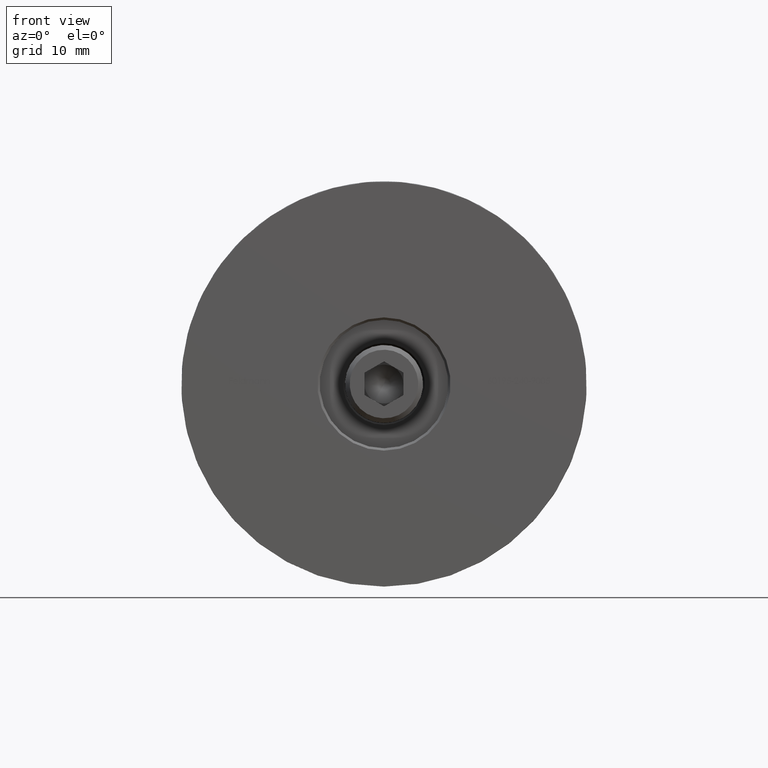
[diagram: clean part render]
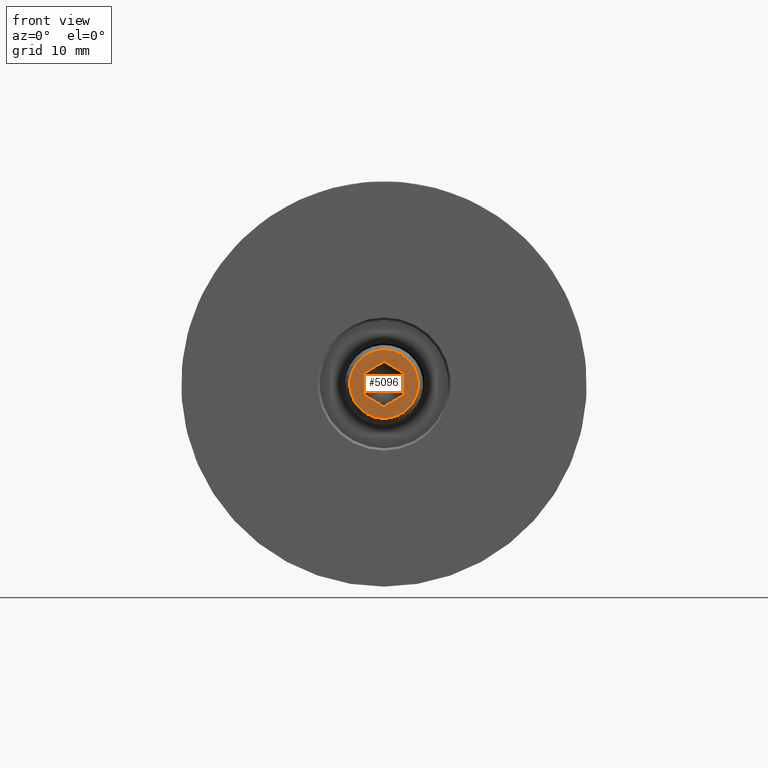
[diagram: same view with one face highlighted and labeled with its STEP entity id]
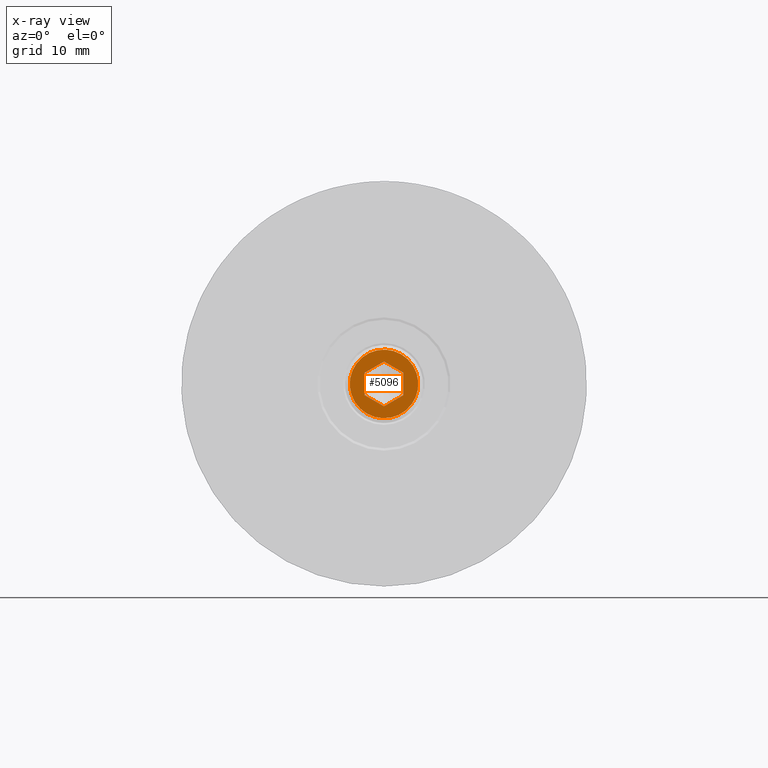
[diagram: x-ray of the same camera — body ghosted, the highlighted face saturated]
A machine part, front view. The second image highlights one B-rep face of the part: STEP entity #5096.
The next image is the same camera in x-ray: the body ghosted, the highlighted face saturated — about 0% of this face is hidden behind the body in this view.
In plain terms, the highlighted planar face has unit normal (0, -1, 0).
Its self-contained STEP definition (entity closure, byte-faithful):
#95 = CARTESIAN_POINT ( 'NONE',  ( 55.00000000000000000, 0.000000000000000000, 0.000000000000000000 ) ) ;
#333 = CARTESIAN_POINT ( 'NONE',  ( 55.00000000000000000, 1.443375672974065660, 2.500000000000000444 ) ) ;
#1286 = DIRECTION ( 'NONE',  ( 0.000000000000000000, 0.000000000000000000, -1.000000000000000000 ) ) ;
#1874 = LINE ( 'NONE', #6760, #15756 ) ;
#1957 = CARTESIAN_POINT ( 'NONE',  ( 55.00000000000000000, 0.000000000000000000, 0.000000000000000000 ) ) ;
#2215 = VERTEX_POINT ( 'NONE', #8020 ) ;
#2663 = LINE ( 'NONE', #13238, #9302 ) ;
#2771 = DIRECTION ( 'NONE',  ( -0.000000000000000000, 0.000000000000000000, -1.000000000000000000 ) ) ;
#3325 = VECTOR ( 'NONE', #3841, 1000.000000000000000 ) ;
#3370 = DIRECTION ( 'NONE',  ( -0.000000000000000000, 0.4999999999999996114, -0.8660254037844389297 ) ) ;
#3841 = DIRECTION ( 'NONE',  ( 0.000000000000000000, 1.000000000000000000, -1.665334536937734071E-16 ) ) ;
#3947 = EDGE_CURVE ( 'NONE', #15606, #10503, #1874, .T. ) ;
#4205 = CIRCLE ( 'NONE', #5143, 4.399999999999996803 ) ;
#4327 = EDGE_CURVE ( 'NONE', #10503, #8608, #9803, .T. ) ;
#5096 = ADVANCED_FACE ( 'NONE', ( #6001, #9361 ), #8383, .T. ) ;
#5143 = AXIS2_PLACEMENT_3D ( 'NONE', #1957, #17721, #1286 ) ;
#5513 = CARTESIAN_POINT ( 'NONE',  ( 55.00000000000000000, 1.443375672974065660, 2.500000000000000444 ) ) ;
#5514 = EDGE_CURVE ( 'NONE', #14983, #16099, #14400, .T. ) ;
#5562 = ORIENTED_EDGE ( 'NONE', *, *, #16652, .F. ) ;
#6001 = FACE_BOUND ( 'NONE', #15428, .T. ) ;
#6632 = CARTESIAN_POINT ( 'NONE',  ( 55.00000000000000000, -1.443375672974069879, -2.500000000000007550 ) ) ;
#6654 = ORIENTED_EDGE ( 'NONE', *, *, #6688, .T. ) ;
#6688 = EDGE_CURVE ( 'NONE', #2215, #2215, #4205, .T. ) ;
#6760 = CARTESIAN_POINT ( 'NONE',  ( 55.00000000000000000, -1.443375672974070545, 2.500000000000004441 ) ) ;
#7121 = EDGE_CURVE ( 'NONE', #16099, #15606, #15494, .T. ) ;
#7286 = CARTESIAN_POINT ( 'NONE',  ( 55.00000000000000000, -1.443375672974070545, 2.500000000000004441 ) ) ;
#7545 = CARTESIAN_POINT ( 'NONE',  ( 55.00000000000000000, 2.886751345948133984, -3.501051950007048874E-15 ) ) ;
#8016 = ORIENTED_EDGE ( 'NONE', *, *, #7121, .F. ) ;
#8020 = CARTESIAN_POINT ( 'NONE',  ( 55.00000000000000000, 0.000000000000000000, -4.399999999999996803 ) ) ;
#8264 = VECTOR ( 'NONE', #3370, 1000.000000000000000 ) ;
#8383 = PLANE ( 'NONE',  #12398 ) ;
#8439 = ORIENTED_EDGE ( 'NONE', *, *, #16359, .F. ) ;
#8486 = ORIENTED_EDGE ( 'NONE', *, *, #5514, .F. ) ;
#8608 = VERTEX_POINT ( 'NONE', #17129 ) ;
#8685 = DIRECTION ( 'NONE',  ( 0.000000000000000000, -1.000000000000000000, 0.000000000000000000 ) ) ;
#8698 = CARTESIAN_POINT ( 'NONE',  ( 55.00000000000000000, -2.886751345948135317, 8.357567399349688624E-16 ) ) ;
#8851 = CARTESIAN_POINT ( 'NONE',  ( 55.00000000000000000, 1.443375672974067658, -2.500000000000004885 ) ) ;
#9012 = CARTESIAN_POINT ( 'NONE',  ( 55.00000000000000000, -2.886751345948135317, 8.357567399349688624E-16 ) ) ;
#9302 = VECTOR ( 'NONE', #13371, 1000.000000000000227 ) ;
#9361 = FACE_OUTER_BOUND ( 'NONE', #15091, .T. ) ;
#9803 = LINE ( 'NONE', #9012, #8264 ) ;
#10503 = VERTEX_POINT ( 'NONE', #8698 ) ;
#10875 = DIRECTION ( 'NONE',  ( 0.000000000000000000, -0.4999999999999999445, 0.8660254037844385966 ) ) ;
#11066 = LINE ( 'NONE', #6632, #3325 ) ;
#11211 = DIRECTION ( 'NONE',  ( 1.000000000000000000, 0.000000000000000000, 0.000000000000000000 ) ) ;
#11737 = VECTOR ( 'NONE', #8685, 1000.000000000000000 ) ;
#12200 = ORIENTED_EDGE ( 'NONE', *, *, #4327, .F. ) ;
#12398 = AXIS2_PLACEMENT_3D ( 'NONE', #95, #11211, #2771 ) ;
#13238 = CARTESIAN_POINT ( 'NONE',  ( 55.00000000000000000, 1.443375672974067658, -2.500000000000004885 ) ) ;
#13371 = DIRECTION ( 'NONE',  ( 0.000000000000000000, 0.5000000000000001110, 0.8660254037844384856 ) ) ;
#13765 = VERTEX_POINT ( 'NONE', #8851 ) ;
#14101 = ORIENTED_EDGE ( 'NONE', *, *, #3947, .F. ) ;
#14400 = LINE ( 'NONE', #7545, #16160 ) ;
#14983 = VERTEX_POINT ( 'NONE', #15934 ) ;
#15091 = EDGE_LOOP ( 'NONE', ( #6654 ) ) ;
#15428 = EDGE_LOOP ( 'NONE', ( #14101, #8016, #8486, #5562, #8439, #12200 ) ) ;
#15494 = LINE ( 'NONE', #333, #11737 ) ;
#15606 = VERTEX_POINT ( 'NONE', #7286 ) ;
#15756 = VECTOR ( 'NONE', #18066, 1000.000000000000227 ) ;
#15934 = CARTESIAN_POINT ( 'NONE',  ( 55.00000000000000000, 2.886751345948133984, -3.501051950007048874E-15 ) ) ;
#16099 = VERTEX_POINT ( 'NONE', #5513 ) ;
#16160 = VECTOR ( 'NONE', #10875, 1000.000000000000114 ) ;
#16359 = EDGE_CURVE ( 'NONE', #8608, #13765, #11066, .T. ) ;
#16652 = EDGE_CURVE ( 'NONE', #13765, #14983, #2663, .T. ) ;
#17129 = CARTESIAN_POINT ( 'NONE',  ( 55.00000000000000000, -1.443375672974069879, -2.500000000000007550 ) ) ;
#17721 = DIRECTION ( 'NONE',  ( 1.000000000000000000, 0.000000000000000000, 0.000000000000000000 ) ) ;
#18066 = DIRECTION ( 'NONE',  ( 0.000000000000000000, -0.4999999999999998890, -0.8660254037844385966 ) ) ;